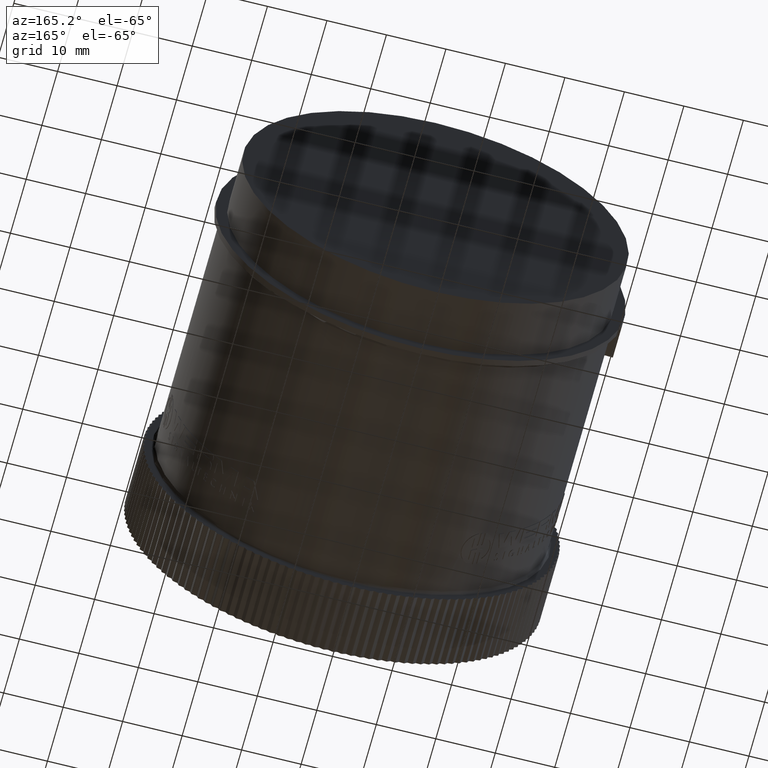
[diagram: clean part render]
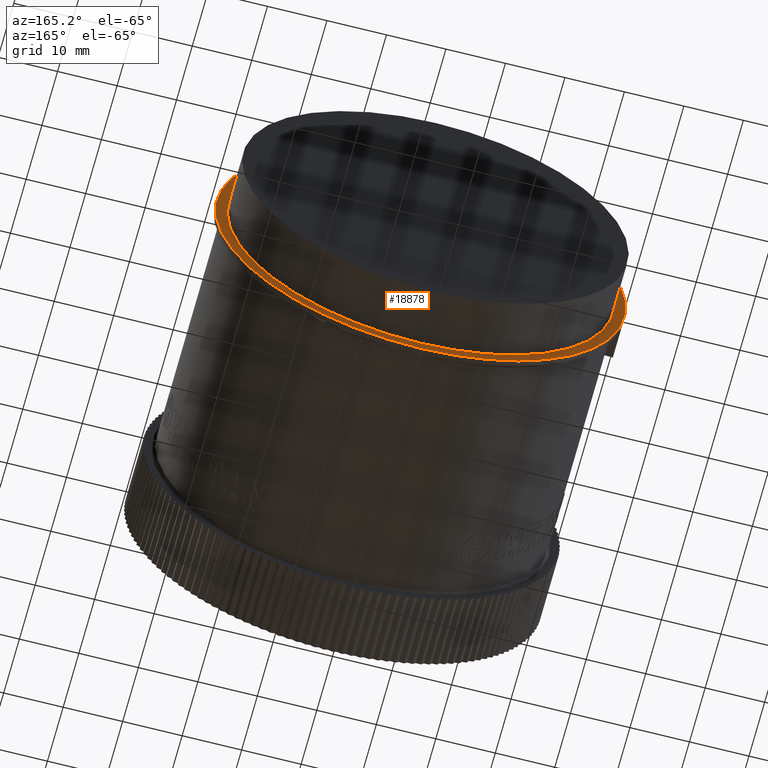
[diagram: same view with one face highlighted and labeled with its STEP entity id]
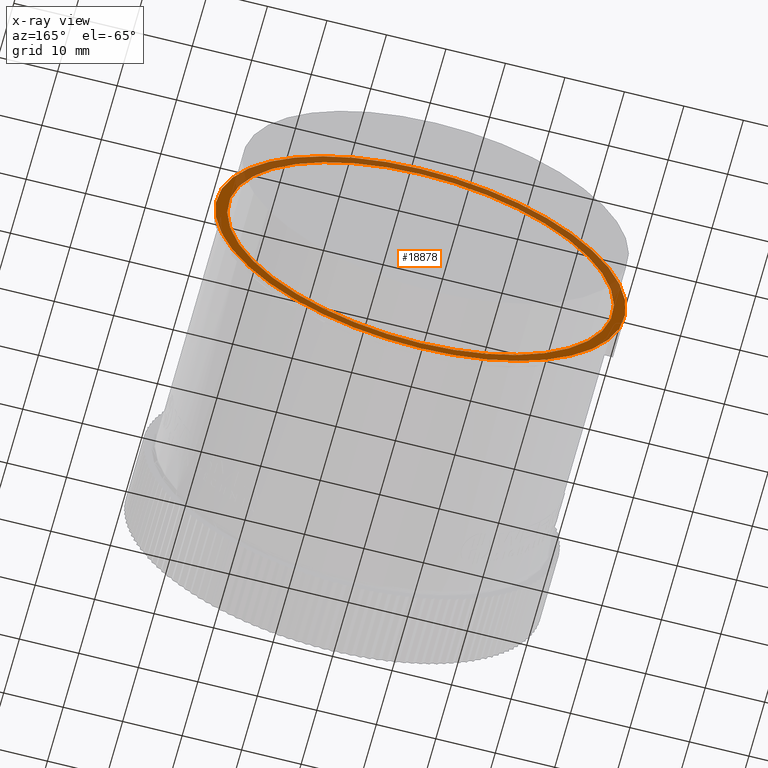
[diagram: x-ray of the same camera — body ghosted, the highlighted face saturated]
A machine part, auxiliary view. The second image highlights one B-rep face of the part: STEP entity #18878.
The next image is the same camera in x-ray: the body ghosted, the highlighted face saturated — about 42% of this face is hidden behind the body in this view.
In plain terms, the highlighted planar face has unit normal (0, 1, 0).
Its self-contained STEP definition (entity closure, byte-faithful):
#456 = VERTEX_POINT ( 'NONE', #17857 ) ;
#1218 = FACE_BOUND ( 'NONE', #34684, .T. ) ;
#1350 = VERTEX_POINT ( 'NONE', #24029 ) ;
#1878 = DIRECTION ( 'NONE',  ( 0.0000000000000000000, 0.0000000000000000000, -1.000000000000000000 ) ) ;
#3104 = PLANE ( 'NONE',  #43924 ) ;
#5386 = AXIS2_PLACEMENT_3D ( 'NONE', #39561, #16362, #43451 ) ;
#7984 = CIRCLE ( 'NONE', #9457, 1.279527559055118300 ) ;
#8050 = CARTESIAN_POINT ( 'NONE',  ( 0.0000000000000000000, 2.204724409448819400, 0.0000000000000000000 ) ) ;
#8514 = EDGE_CURVE ( 'NONE', #32067, #1350, #10058, .T. ) ;
#9457 = AXIS2_PLACEMENT_3D ( 'NONE', #41468, #18277, #45393 ) ;
#10058 = CIRCLE ( 'NONE', #22796, 1.358267716535433300 ) ;
#11864 = CIRCLE ( 'NONE', #5386, 1.279527559055118300 ) ;
#11937 = DIRECTION ( 'NONE',  ( 0.0000000000000000000, 0.0000000000000000000, -1.000000000000000000 ) ) ;
#14795 = CARTESIAN_POINT ( 'NONE',  ( 1.318897637795275700, 2.204724409448819400, 0.0000000000000000000 ) ) ;
#16362 = DIRECTION ( 'NONE',  ( 0.0000000000000000000, -1.000000000000000000, 0.0000000000000000000 ) ) ;
#16723 = ORIENTED_EDGE ( 'NONE', *, *, #39005, .T. ) ;
#17123 = ORIENTED_EDGE ( 'NONE', *, *, #18266, .T. ) ;
#17857 = CARTESIAN_POINT ( 'NONE',  ( 1.566969329617676700E-016, 2.204724409448819400, 1.279527559055118300 ) ) ;
#18266 = EDGE_CURVE ( 'NONE', #456, #42662, #7984, .T. ) ;
#18277 = DIRECTION ( 'NONE',  ( 0.0000000000000000000, -1.000000000000000000, 0.0000000000000000000 ) ) ;
#18878 = ADVANCED_FACE ( 'NONE', ( #1218, #20679 ), #3104, .T. ) ;
#20679 = FACE_OUTER_BOUND ( 'NONE', #33740, .T. ) ;
#22624 = DIRECTION ( 'NONE',  ( 0.0000000000000000000, 1.000000000000000000, 0.0000000000000000000 ) ) ;
#22796 = AXIS2_PLACEMENT_3D ( 'NONE', #8050, #35151, #11937 ) ;
#22903 = ORIENTED_EDGE ( 'NONE', *, *, #8514, .F. ) ;
#24029 = CARTESIAN_POINT ( 'NONE',  ( 0.0000000000000000000, 2.204724409448819400, -1.358267716535433300 ) ) ;
#25137 = DIRECTION ( 'NONE',  ( 0.0000000000000000000, -1.000000000000000000, 0.0000000000000000000 ) ) ;
#32067 = VERTEX_POINT ( 'NONE', #41014 ) ;
#33740 = EDGE_LOOP ( 'NONE', ( #34846, #22903 ) ) ;
#34684 = EDGE_LOOP ( 'NONE', ( #16723, #17123 ) ) ;
#34698 = AXIS2_PLACEMENT_3D ( 'NONE', #48370, #25137, #1878 ) ;
#34846 = ORIENTED_EDGE ( 'NONE', *, *, #41985, .F. ) ;
#35151 = DIRECTION ( 'NONE',  ( 0.0000000000000000000, -1.000000000000000000, 0.0000000000000000000 ) ) ;
#39005 = EDGE_CURVE ( 'NONE', #42662, #456, #11864, .T. ) ;
#39561 = CARTESIAN_POINT ( 'NONE',  ( 0.0000000000000000000, 2.204724409448819400, 0.0000000000000000000 ) ) ;
#41014 = CARTESIAN_POINT ( 'NONE',  ( 1.663398211440302800E-016, 2.204724409448819400, 1.358267716535433300 ) ) ;
#41468 = CARTESIAN_POINT ( 'NONE',  ( 0.0000000000000000000, 2.204724409448819400, 0.0000000000000000000 ) ) ;
#41985 = EDGE_CURVE ( 'NONE', #1350, #32067, #49428, .T. ) ;
#42662 = VERTEX_POINT ( 'NONE', #47259 ) ;
#43451 = DIRECTION ( 'NONE',  ( 0.0000000000000000000, 0.0000000000000000000, -1.000000000000000000 ) ) ;
#43924 = AXIS2_PLACEMENT_3D ( 'NONE', #14795, #22624, #49729 ) ;
#45393 = DIRECTION ( 'NONE',  ( 0.0000000000000000000, 0.0000000000000000000, -1.000000000000000000 ) ) ;
#47259 = CARTESIAN_POINT ( 'NONE',  ( 0.0000000000000000000, 2.204724409448819400, -1.279527559055118300 ) ) ;
#48370 = CARTESIAN_POINT ( 'NONE',  ( 0.0000000000000000000, 2.204724409448819400, 0.0000000000000000000 ) ) ;
#49428 = CIRCLE ( 'NONE', #34698, 1.358267716535433300 ) ;
#49729 = DIRECTION ( 'NONE',  ( 0.0000000000000000000, -0.0000000000000000000, 1.000000000000000000 ) ) ;